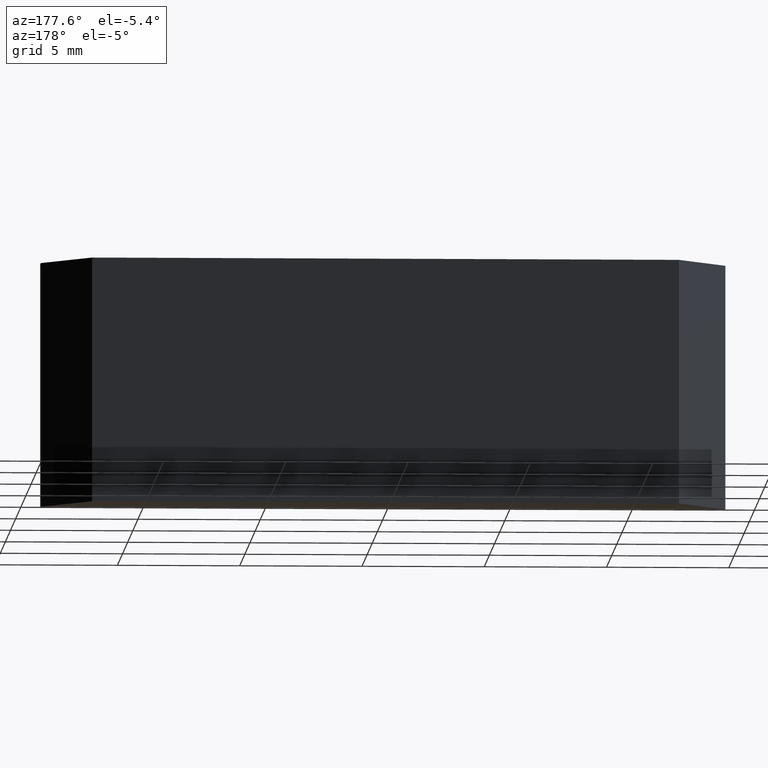
[diagram: clean part render]
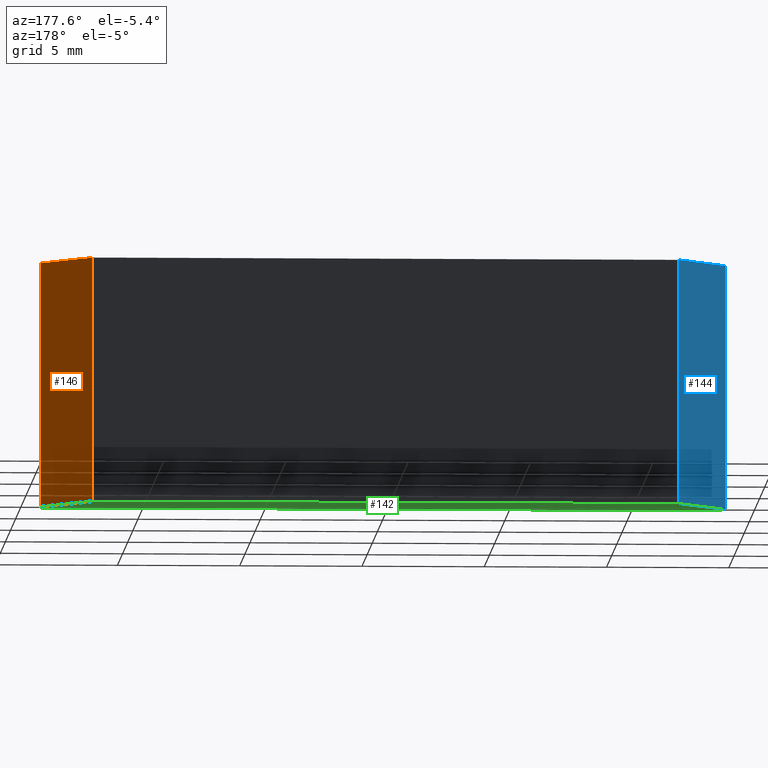
[diagram: same view with three faces highlighted in distinct colors, each labeled with its STEP entity id]
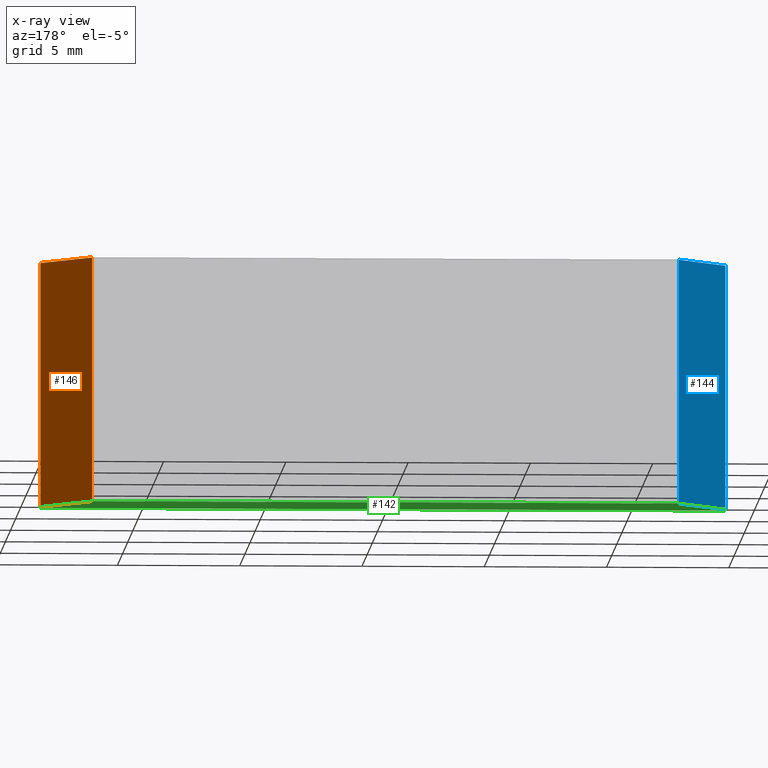
[diagram: x-ray of the same camera — body ghosted, the three highlighted faces saturated]
A machine part, auxiliary view with three faces highlighted in distinct colors.
The next image is the same camera in x-ray (body ghosted, the three faces saturated) — at least one of them is partly hidden behind the body in this view.
Their STEP definitions:

[orange] entity #146 — the highlighted planar face has unit normal (0.7809, 0.6247, 0).
#20=FACE_OUTER_BOUND('',#28,.T.);
#28=EDGE_LOOP('',(#116,#117,#118,#119));
#37=LINE('',#230,#55);
#44=LINE('',#244,#62);
#45=LINE('',#247,#63);
#46=LINE('',#248,#64);
#55=VECTOR('',#190,10.);
#62=VECTOR('',#203,10.);
#63=VECTOR('',#206,10.);
#64=VECTOR('',#207,10.);
#69=VERTEX_POINT('',#220);
#73=VERTEX_POINT('',#228);
#77=VERTEX_POINT('',#242);
#78=VERTEX_POINT('',#246);
#85=EDGE_CURVE('',#69,#73,#37,.T.);
#92=EDGE_CURVE('',#77,#73,#44,.T.);
#93=EDGE_CURVE('',#77,#78,#45,.T.);
#94=EDGE_CURVE('',#78,#69,#46,.T.);
#116=ORIENTED_EDGE('',*,*,#93,.T.);
#117=ORIENTED_EDGE('',*,*,#94,.T.);
#118=ORIENTED_EDGE('',*,*,#85,.T.);
#119=ORIENTED_EDGE('',*,*,#92,.F.);
#138=PLANE('',#177);
#146=ADVANCED_FACE('',(#20),#138,.T.);
#177=AXIS2_PLACEMENT_3D('',#245,#204,#205);
#190=DIRECTION('',(-0.624695047554424,0.78086880944303,0.));
#203=DIRECTION('',(0.,0.,-1.));
#204=DIRECTION('center_axis',(0.78086880944303,0.624695047554424,0.));
#205=DIRECTION('ref_axis',(0.,0.,-1.));
#206=DIRECTION('',(0.624695047554424,-0.78086880944303,0.));
#207=DIRECTION('',(0.,0.,-1.));
#220=CARTESIAN_POINT('',(14.,0.499999999999999,-5.));
#228=CARTESIAN_POINT('',(12.,3.,-5.));
#230=CARTESIAN_POINT('',(12.,3.,-5.));
#242=CARTESIAN_POINT('',(12.,3.,5.));
#244=CARTESIAN_POINT('',(12.,3.,0.));
#245=CARTESIAN_POINT('Origin',(12.,3.,0.));
#246=CARTESIAN_POINT('',(14.,0.499999999999999,5.));
#247=CARTESIAN_POINT('',(12.,3.,5.));
#248=CARTESIAN_POINT('',(14.,0.499999999999999,0.));

[blue] entity #144 — the highlighted planar face has unit normal (-0.7809, 0.6247, 0).
#18=FACE_OUTER_BOUND('',#26,.T.);
#26=EDGE_LOOP('',(#108,#109,#110,#111));
#35=LINE('',#227,#53);
#39=LINE('',#235,#57);
#41=LINE('',#239,#59);
#42=LINE('',#240,#60);
#53=VECTOR('',#188,10.);
#57=VECTOR('',#194,10.);
#59=VECTOR('',#198,10.);
#60=VECTOR('',#199,10.);
#71=VERTEX_POINT('',#224);
#72=VERTEX_POINT('',#226);
#75=VERTEX_POINT('',#233);
#76=VERTEX_POINT('',#238);
#83=EDGE_CURVE('',#72,#71,#35,.T.);
#87=EDGE_CURVE('',#75,#71,#39,.T.);
#89=EDGE_CURVE('',#75,#76,#41,.T.);
#90=EDGE_CURVE('',#76,#72,#42,.T.);
#108=ORIENTED_EDGE('',*,*,#89,.T.);
#109=ORIENTED_EDGE('',*,*,#90,.T.);
#110=ORIENTED_EDGE('',*,*,#83,.T.);
#111=ORIENTED_EDGE('',*,*,#87,.F.);
#136=PLANE('',#175);
#144=ADVANCED_FACE('',(#18),#136,.T.);
#175=AXIS2_PLACEMENT_3D('',#237,#196,#197);
#188=DIRECTION('',(-0.624695047554424,-0.78086880944303,0.));
#194=DIRECTION('',(0.,0.,-1.));
#196=DIRECTION('center_axis',(-0.78086880944303,0.624695047554424,0.));
#197=DIRECTION('ref_axis',(0.,0.,1.));
#198=DIRECTION('',(0.624695047554424,0.78086880944303,0.));
#199=DIRECTION('',(0.,0.,-1.));
#224=CARTESIAN_POINT('',(-14.,0.499999999999999,-5.));
#226=CARTESIAN_POINT('',(-12.,3.,-5.));
#227=CARTESIAN_POINT('',(-14.,0.499999999999999,-5.));
#233=CARTESIAN_POINT('',(-14.,0.499999999999999,5.));
#235=CARTESIAN_POINT('',(-14.,0.499999999999999,0.));
#237=CARTESIAN_POINT('Origin',(-14.,0.499999999999999,0.));
#238=CARTESIAN_POINT('',(-12.,3.,5.));
#239=CARTESIAN_POINT('',(-14.,0.499999999999999,5.));
#240=CARTESIAN_POINT('',(-12.,3.,0.));

[green] entity #142 — the highlighted planar face has unit normal (0, 0, 1).
#16=FACE_OUTER_BOUND('',#24,.T.);
#24=EDGE_LOOP('',(#98,#99,#100,#101,#102,#103));
#32=LINE('',#221,#50);
#33=LINE('',#223,#51);
#34=LINE('',#225,#52);
#35=LINE('',#227,#53);
#36=LINE('',#229,#54);
#37=LINE('',#230,#55);
#50=VECTOR('',#185,10.);
#51=VECTOR('',#186,10.);
#52=VECTOR('',#187,10.);
#53=VECTOR('',#188,10.);
#54=VECTOR('',#189,10.);
#55=VECTOR('',#190,10.);
#68=VERTEX_POINT('',#219);
#69=VERTEX_POINT('',#220);
#70=VERTEX_POINT('',#222);
#71=VERTEX_POINT('',#224);
#72=VERTEX_POINT('',#226);
#73=VERTEX_POINT('',#228);
#80=EDGE_CURVE('',#68,#69,#32,.T.);
#81=EDGE_CURVE('',#70,#68,#33,.T.);
#82=EDGE_CURVE('',#71,#70,#34,.T.);
#83=EDGE_CURVE('',#72,#71,#35,.T.);
#84=EDGE_CURVE('',#73,#72,#36,.T.);
#85=EDGE_CURVE('',#69,#73,#37,.T.);
#98=ORIENTED_EDGE('',*,*,#80,.F.);
#99=ORIENTED_EDGE('',*,*,#81,.F.);
#100=ORIENTED_EDGE('',*,*,#82,.F.);
#101=ORIENTED_EDGE('',*,*,#83,.F.);
#102=ORIENTED_EDGE('',*,*,#84,.F.);
#103=ORIENTED_EDGE('',*,*,#85,.F.);
#134=PLANE('',#173);
#142=ADVANCED_FACE('',(#16),#134,.F.);
#173=AXIS2_PLACEMENT_3D('',#218,#183,#184);
#183=DIRECTION('center_axis',(0.,0.,1.));
#184=DIRECTION('ref_axis',(1.,0.,0.));
#185=DIRECTION('',(0.,1.,0.));
#186=DIRECTION('',(1.,0.,0.));
#187=DIRECTION('',(0.,-1.,0.));
#188=DIRECTION('',(-0.624695047554424,-0.78086880944303,0.));
#189=DIRECTION('',(-1.,0.,0.));
#190=DIRECTION('',(-0.624695047554424,0.78086880944303,0.));
#218=CARTESIAN_POINT('Origin',(-2.42861286636753E-16,1.40490030594919,-5.));
#219=CARTESIAN_POINT('',(14.,-1.11022302462516E-15,-5.));
#220=CARTESIAN_POINT('',(14.,0.499999999999999,-5.));
#221=CARTESIAN_POINT('',(14.,0.499999999999999,-5.));
#222=CARTESIAN_POINT('',(-14.,-1.11022302462516E-15,-5.));
#223=CARTESIAN_POINT('',(14.,-1.11022302462516E-15,-5.));
#224=CARTESIAN_POINT('',(-14.,0.499999999999999,-5.));
#225=CARTESIAN_POINT('',(-14.,-1.11022302462516E-15,-5.));
#226=CARTESIAN_POINT('',(-12.,3.,-5.));
#227=CARTESIAN_POINT('',(-14.,0.499999999999999,-5.));
#228=CARTESIAN_POINT('',(12.,3.,-5.));
#229=CARTESIAN_POINT('',(-12.,3.,-5.));
#230=CARTESIAN_POINT('',(12.,3.,-5.));